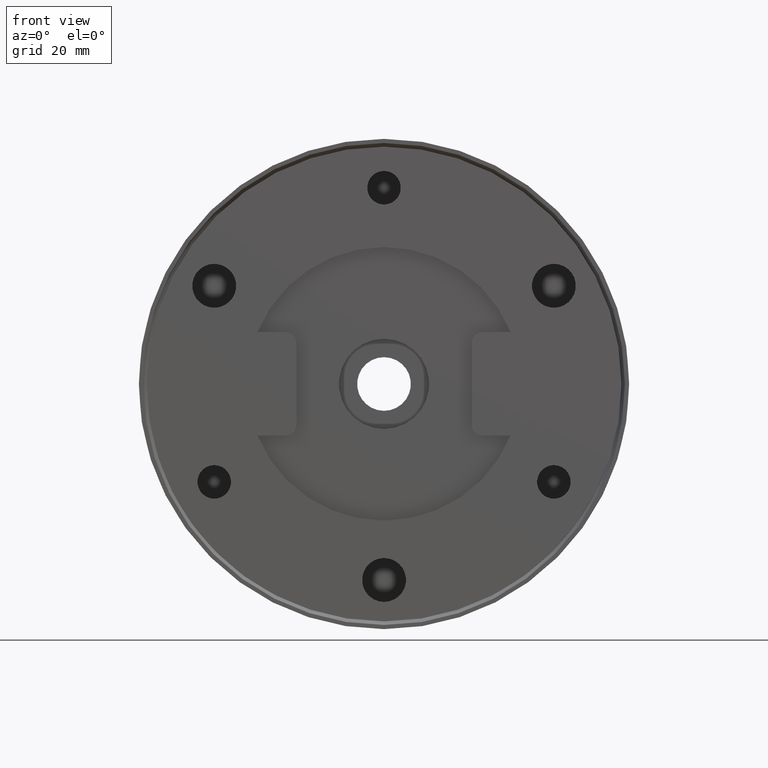
[diagram: clean part render]
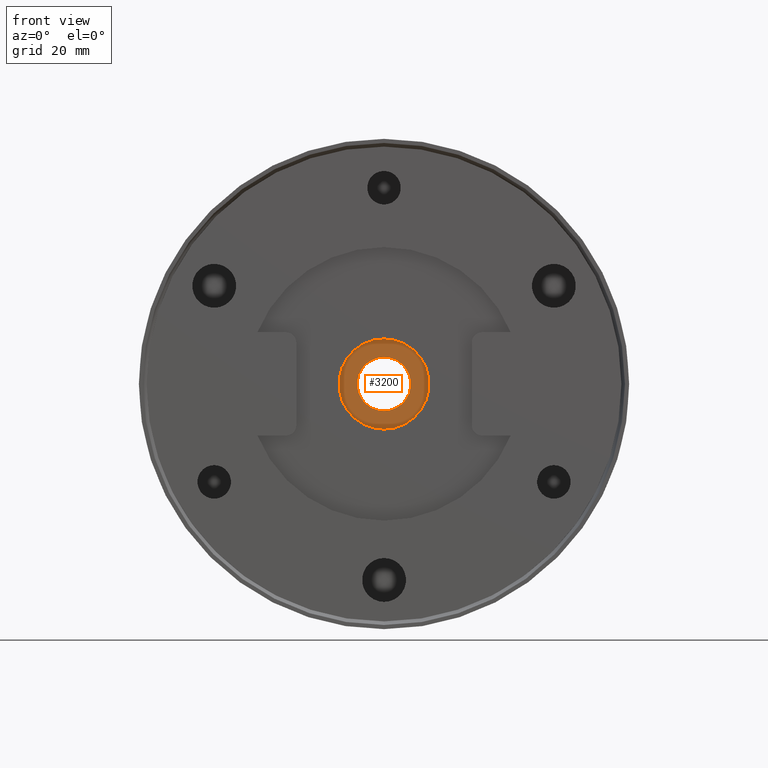
[diagram: same view with one face highlighted and labeled with its STEP entity id]
A machine part, front view. The second image highlights one B-rep face of the part: STEP entity #3200.
In plain terms, the highlighted planar face has unit normal (0, -1, 0).
Its self-contained STEP definition (entity closure, byte-faithful):
#18 = EDGE_LOOP ( 'NONE', ( #1267, #1028 ) ) ;
#49 = CIRCLE ( 'NONE', #3463, 8.750000000000001800 ) ;
#170 = DIRECTION ( 'NONE',  ( 0.0000000000000000000, 0.0000000000000000000, -1.000000000000000000 ) ) ;
#187 = CARTESIAN_POINT ( 'NONE',  ( 0.0000000000000000000, 5.000000000000000000, 0.0000000000000000000 ) ) ;
#259 = DIRECTION ( 'NONE',  ( -0.0000000000000000000, 1.000000000000000000, -0.0000000000000000000 ) ) ;
#272 = CARTESIAN_POINT ( 'NONE',  ( 1.071565949253934300E-015, 5.000000000000000000, 8.750000000000001800 ) ) ;
#293 = ORIENTED_EDGE ( 'NONE', *, *, #1473, .T. ) ;
#496 = DIRECTION ( 'NONE',  ( 0.0000000000000000000, -1.000000000000000000, 0.0000000000000000000 ) ) ;
#559 = CARTESIAN_POINT ( 'NONE',  ( 0.0000000000000000000, 5.000000000000000000, 0.0000000000000000000 ) ) ;
#674 = FACE_OUTER_BOUND ( 'NONE', #867, .T. ) ;
#791 = CARTESIAN_POINT ( 'NONE',  ( 0.0000000000000000000, 5.000000000000000000, -8.750000000000001800 ) ) ;
#867 = EDGE_LOOP ( 'NONE', ( #3164, #293 ) ) ;
#1028 = ORIENTED_EDGE ( 'NONE', *, *, #2183, .T. ) ;
#1267 = ORIENTED_EDGE ( 'NONE', *, *, #2468, .T. ) ;
#1385 = CARTESIAN_POINT ( 'NONE',  ( 0.0000000000000000000, 5.000000000000000000, 5.200000000000000200 ) ) ;
#1390 = VERTEX_POINT ( 'NONE', #272 ) ;
#1473 = EDGE_CURVE ( 'NONE', #1390, #2239, #2394, .T. ) ;
#1745 = DIRECTION ( 'NONE',  ( 0.0000000000000000000, 0.0000000000000000000, -1.000000000000000000 ) ) ;
#1833 = AXIS2_PLACEMENT_3D ( 'NONE', #187, #496, #2346 ) ;
#1850 = DIRECTION ( 'NONE',  ( 0.0000000000000000000, -1.000000000000000000, 0.0000000000000000000 ) ) ;
#1877 = DIRECTION ( 'NONE',  ( 0.0000000000000000000, 0.0000000000000000000, -1.000000000000000000 ) ) ;
#1995 = VERTEX_POINT ( 'NONE', #1385 ) ;
#2123 = FACE_BOUND ( 'NONE', #18, .T. ) ;
#2183 = EDGE_CURVE ( 'NONE', #2869, #1995, #3067, .T. ) ;
#2209 = CARTESIAN_POINT ( 'NONE',  ( 0.0000000000000000000, 5.000000000000000000, 0.0000000000000000000 ) ) ;
#2239 = VERTEX_POINT ( 'NONE', #791 ) ;
#2304 = PLANE ( 'NONE',  #1833 ) ;
#2340 = AXIS2_PLACEMENT_3D ( 'NONE', #2209, #3303, #2730 ) ;
#2346 = DIRECTION ( 'NONE',  ( 0.0000000000000000000, -0.0000000000000000000, -1.000000000000000000 ) ) ;
#2393 = CARTESIAN_POINT ( 'NONE',  ( 6.368163355566236400E-016, 5.000000000000000000, -5.200000000000000200 ) ) ;
#2394 = CIRCLE ( 'NONE', #2441, 8.750000000000001800 ) ;
#2441 = AXIS2_PLACEMENT_3D ( 'NONE', #559, #1850, #1877 ) ;
#2468 = EDGE_CURVE ( 'NONE', #1995, #2869, #2928, .T. ) ;
#2711 = AXIS2_PLACEMENT_3D ( 'NONE', #2815, #259, #170 ) ;
#2730 = DIRECTION ( 'NONE',  ( 0.0000000000000000000, 0.0000000000000000000, -1.000000000000000000 ) ) ;
#2815 = CARTESIAN_POINT ( 'NONE',  ( 0.0000000000000000000, 5.000000000000000000, 0.0000000000000000000 ) ) ;
#2869 = VERTEX_POINT ( 'NONE', #2393 ) ;
#2928 = CIRCLE ( 'NONE', #2340, 5.200000000000000200 ) ;
#3067 = CIRCLE ( 'NONE', #2711, 5.200000000000000200 ) ;
#3071 = DIRECTION ( 'NONE',  ( 0.0000000000000000000, -1.000000000000000000, 0.0000000000000000000 ) ) ;
#3092 = EDGE_CURVE ( 'NONE', #2239, #1390, #49, .T. ) ;
#3164 = ORIENTED_EDGE ( 'NONE', *, *, #3092, .T. ) ;
#3200 = ADVANCED_FACE ( 'NONE', ( #674, #2123 ), #2304, .T. ) ;
#3303 = DIRECTION ( 'NONE',  ( -0.0000000000000000000, 1.000000000000000000, -0.0000000000000000000 ) ) ;
#3361 = CARTESIAN_POINT ( 'NONE',  ( 0.0000000000000000000, 5.000000000000000000, 0.0000000000000000000 ) ) ;
#3463 = AXIS2_PLACEMENT_3D ( 'NONE', #3361, #3071, #1745 ) ;